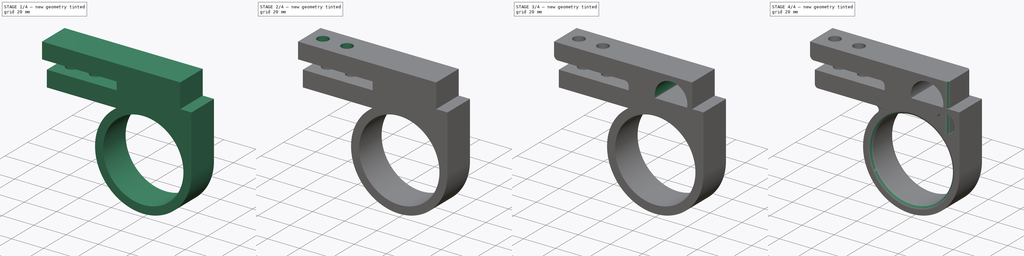
[diagram: build sequence overview — one tinted view per stage of 4, left to right]
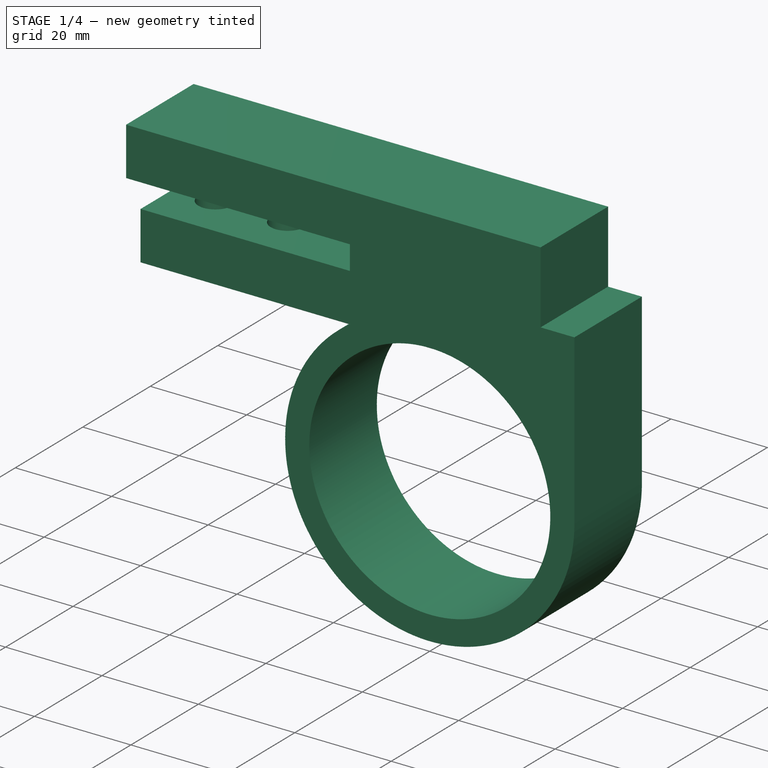
[diagram: stage 1 of 4 — iso view after this stage's code; geometry added in this stage tinted green]
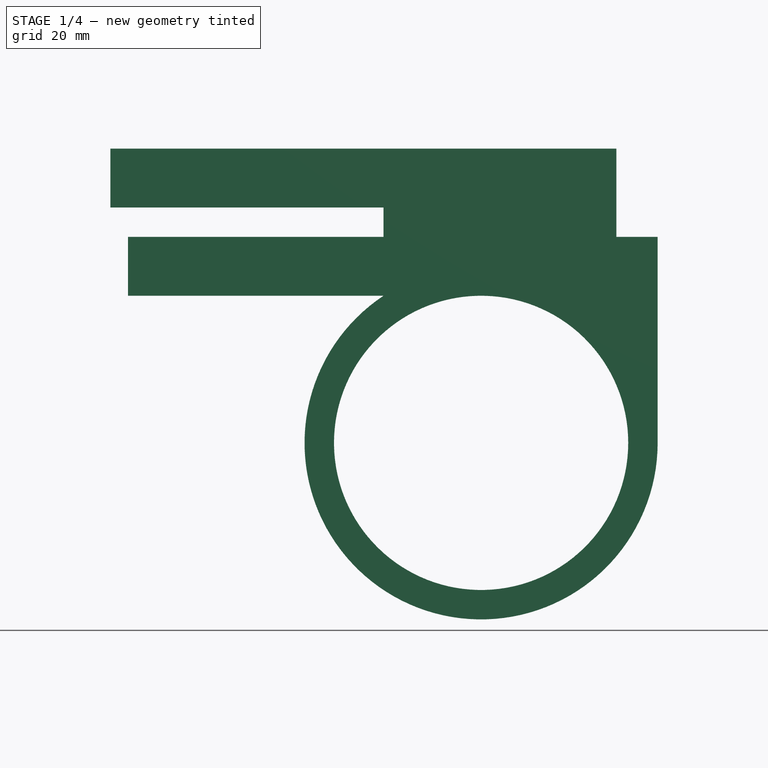
[diagram: stage 1 of 4 — front view after this stage's code; geometry added in this stage tinted green]
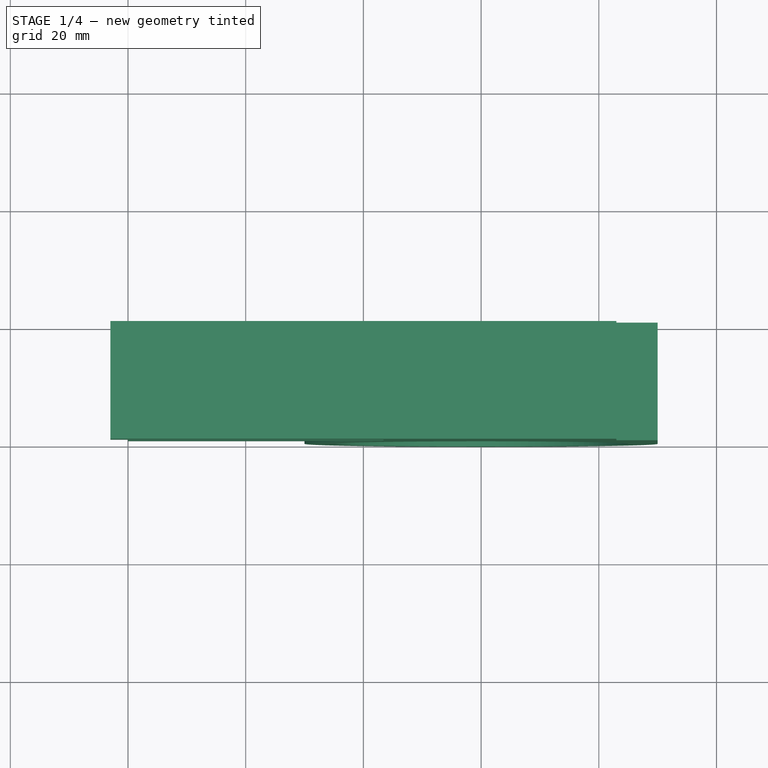
[diagram: stage 1 of 4 — top view after this stage's code; geometry added in this stage tinted green]
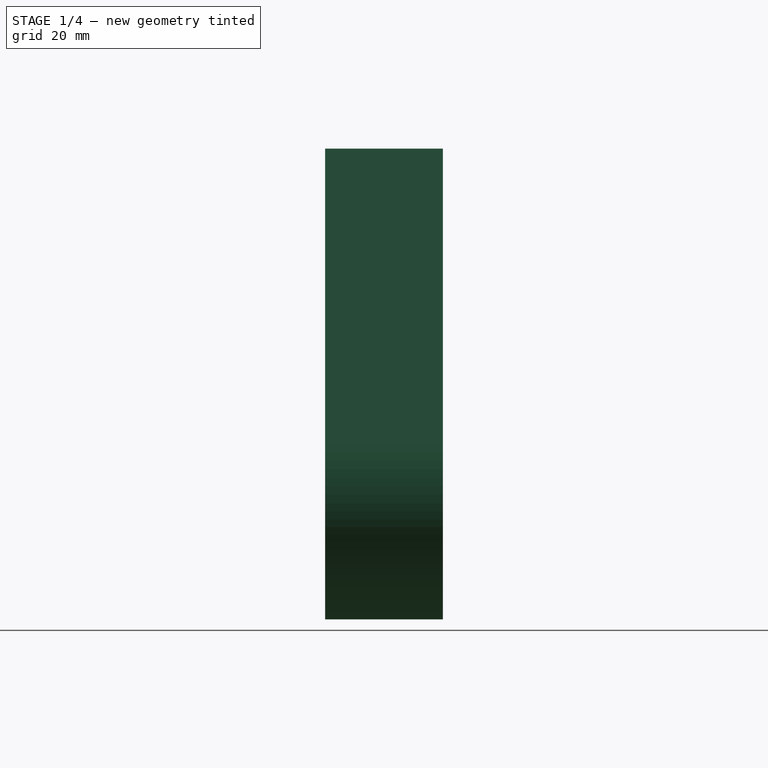
[diagram: stage 1 of 4 — right view after this stage's code; geometry added in this stage tinted green]
FCSTD DOCUMENT  (FreeCAD 0.20R29177 +426 (Git))
Label: treadmill_brackets
License: All rights reserved
LicenseURL: http://en.wikipedia.org/wiki/All_rights_reserved
objects: Sketcher::SketchObject×8, PartDesign::Pocket×6, PartDesign::Fillet×6, PartDesign::Pad×2, PartDesign::Body×2, Spreadsheet::Sheet×1
note: 38 computed .brp shape members not serialized (recipe doc carries the construction recipe); baked Part::Feature solids carry a one-line shape summary decoded from their .brp

FEATURE [Sketcher::SketchObject] Sketch
  FullyConstrained = true
  MapMode = 5
  Placement = pos=(0,0,0) rot=(1,0,0;1.5708rad)
  Support = -> [XZ_Plane]
  expr: Constraints[48] = <<Spreadsheet>>.handle_diam + <<Spreadsheet>>.wall_thickness * 2
  expr: Constraints[4] = <<Spreadsheet>>.handle_diam
  sketch-geometry (33):
    g0: Circle CenterX=0 CenterY=0 CenterZ=0 NormalX=0 NormalY=0 NormalZ=1 AngleXU=0 Radius=30
    g1: Circle CenterX=0 CenterY=0 CenterZ=0 NormalX=0 NormalY=0 NormalZ=1 AngleXU=0 Radius=25
    g2: LineSegment StartX=-60 StartY=35 StartZ=0 EndX=30 EndY=35 EndZ=0
    g3: LineSegment StartX=30 StartY=35 StartZ=0 EndX=30 EndY=25 EndZ=0
    g4: LineSegment StartX=30 StartY=25 StartZ=0 EndX=-60 EndY=25 EndZ=0
    g5: LineSegment StartX=-60 StartY=25 StartZ=0 EndX=-60 EndY=35 EndZ=0
    g6: LineSegment StartX=-60 StartY=25 StartZ=0 EndX=-60 EndY=35 EndZ=0
    g7: LineSegment StartX=-60 StartY=35 StartZ=0 EndX=30 EndY=35 EndZ=0
    g8: LineSegment StartX=30 StartY=35 StartZ=0 EndX=30 EndY=25 EndZ=0
    g9: LineSegment StartX=30 StartY=25 StartZ=0 EndX=-60 EndY=25 EndZ=0
    g10: LineSegment StartX=-40 StartY=35 StartZ=0 EndX=-33 EndY=35 EndZ=0
    g11: LineSegment StartX=-33 StartY=35 StartZ=0 EndX=-33 EndY=-30 EndZ=0
    g12: LineSegment StartX=-33 StartY=-30 StartZ=0 EndX=-40 EndY=-30 EndZ=0
    g13: LineSegment StartX=-40 StartY=-30 StartZ=0 EndX=-40 EndY=35 EndZ=0
    g14: LineSegment StartX=-41.5 StartY=35 StartZ=0 EndX=-31.5 EndY=35 EndZ=0
    g15: LineSegment StartX=-31.5 StartY=35 StartZ=0 EndX=-31.5 EndY=-30 EndZ=0
    g16: LineSegment StartX=-31.5 StartY=-30 StartZ=0 EndX=-41.5 EndY=-30 EndZ=0
    g17: LineSegment StartX=-41.5 StartY=-30 StartZ=0 EndX=-41.5 EndY=35 EndZ=0
    g18: GeomPoint X=-36.5 Y=-30 Z=0
    g19: GeomPoint X=-36.5 Y=35 Z=0
    g20: LineSegment StartX=-60 StartY=25 StartZ=0 EndX=-16.5831 EndY=25 EndZ=0
    g21: LineSegment StartX=30 StartY=25 StartZ=0 EndX=30 EndY=-7.1e-15 EndZ=0
    g22: ArcOfCircle CenterX=0 CenterY=0 CenterZ=0 NormalX=0 NormalY=0 NormalZ=1 AngleXU=0 Radius=30 StartAngle=2.15648 EndAngle=6.28319
    g23: LineSegment StartX=-31.5 StartY=0 StartZ=0 EndX=-30 EndY=0 EndZ=0
    g24: LineSegment StartX=-56.5 StartY=35 StartZ=0 EndX=-46.5 EndY=35 EndZ=0
    g25: LineSegment StartX=-46.5 StartY=35 StartZ=0 EndX=-46.5 EndY=-30 EndZ=0
    g26: LineSegment StartX=-46.5 StartY=-30 StartZ=0 EndX=-56.5 EndY=-30 EndZ=0
    g27: LineSegment StartX=-56.5 StartY=-30 StartZ=0 EndX=-56.5 EndY=35 EndZ=0
    g28: LineSegment StartX=-55 StartY=35 StartZ=0 EndX=-48 EndY=35 EndZ=0
    g29: LineSegment StartX=-48 StartY=35 StartZ=0 EndX=-48 EndY=-30 EndZ=0
    g30: LineSegment StartX=-48 StartY=-30 StartZ=0 EndX=-55 EndY=-30 EndZ=0
    g31: LineSegment StartX=-55 StartY=-30 StartZ=0 EndX=-55 EndY=35 EndZ=0
    g32: GeomPoint X=-51.5 Y=-30 Z=0
  constraints (82):
    c: Coincident(g0,g-1)
    c: Coincident(g1,g0)
    c: PointOnObject(g21,g0)
    c: PointOnObject(g21,g-1)
    c: Diameter(g1) = 50
    c: Coincident(g2,g3)
    c: Coincident(g3,g4)
    c: Coincident(g4,g5)
    c: Coincident(g5,g2)
    c: Horizontal(g2)
    c: Horizontal(g4)
    c: Vertical(g5)
    c: PointOnObject(g21,g3)
    c: Tangent(g4,g1)
    c: DistanceY(g5,g5) = 10
    c: Coincident(g6,g4)
    c: Coincident(g6,g2)
    c: Coincident(g7,g6)
    c: Coincident(g8,g7)
    c: Coincident(g9,g8)
    c: Coincident(g9,g6)
    c: Coincident(g8,g3)
    c: Vertical(g3)
    c: Coincident(g7,g2)
    c: Coincident(g10,g11)
    c: Coincident(g11,g12)
    c: Coincident(g12,g13)
    c: Coincident(g13,g10)
    c: Horizontal(g12)
    c: Vertical(g11)
    c: Vertical(g13)
    c: Tangent(g10,g7)
    c: Coincident(g14,g15)
    c: Coincident(g15,g16)
    c: Coincident(g16,g17)
    c: Coincident(g17,g14)
    c: Horizontal(g16)
    c: Vertical(g15)
    c: Vertical(g17)
    c: DistanceX(g12,g12) = 7
    c: DistanceX(g16,g16) = 10
    c: Symmetric(g12,g11,g18)
    c: Symmetric(g16,g15,g18)
    c: Tangent(g14,g7)
    c: Tangent(g12,g0)
    c: Symmetric(g10,g10,g19)
    c: Coincident(g20,g6)
    c: Coincident(g21,g8)
    c: Diameter(g0) = 60
    c: PointOnObject(g20,g4)
    c: Coincident(g22,g1)
    c: Coincident(g22,g20)
    c: Coincident(g22,g21)
    c: PointOnObject(g23,g15)
    c: PointOnObject(g23,g22)
    c: DistanceX(g23,g23) = 1.5
    c: Tangent(g23,g-1)
    c: Coincident(g24,g25)
    c: Coincident(g25,g26)
    c: Coincident(g26,g27)
    c: Coincident(g27,g24)
    c: Horizontal(g24)
    c: Horizontal(g26)
    c: Vertical(g25)
    c: Vertical(g27)
    c: PointOnObject(g24,g7)
    c: Tangent(g26,g22)
    c: Coincident(g28,g29)
    c: Coincident(g29,g30)
    c: Coincident(g30,g31)
    c: Coincident(g31,g28)
    c: Horizontal(g28)
    c: Horizontal(g30)
    c: Vertical(g29)
    c: Vertical(g31)
    c: PointOnObject(g28,g7)
    c: DistanceX(g26,g26) = 10
    c: DistanceX(g30,g29) = 7
    c: Symmetric(g30,g29,g32)
    c: Symmetric(g26,g25,g32)
    c: DistanceX(g24,g14) = 5
    c: DistanceX(g6,g28) = 5
FEATURE [PartDesign::Pad] Pad
  Direction = (0,-1,-2e-16)
  Length = 20
  Length2 = 10
  Placement = pos=(0,0,0) rot=(1,0,0;1.5708rad)
  Profile = -> Sketch
  ReferenceAxis = -> Sketch [N_Axis]
  Type = 0
  expr: Length = <<Spreadsheet>>.mount_width
FEATURE [Sketcher::SketchObject] Sketch001
  ExternalGeometry = -> [Pad]
  FullyConstrained = false
  MapMode = 5
  Placement = pos=(0,-7.8e-15,35) rot=(0,0,1;3.14159rad)
  Support = -> [Pad]
  sketch-geometry (18):
    g0: GeomPoint X=0 Y=20 Z=0
    g1: GeomPoint X=51.5 Y=10 Z=0
    g2: Circle CenterX=51.5 CenterY=10 CenterZ=0 NormalX=0 NormalY=0 NormalZ=1 AngleXU=0 Radius=3.5
    g3: LineSegment StartX=51.5 StartY=20 StartZ=0 EndX=51.5 EndY=0 EndZ=0
    g4: LineSegment StartX=48 StartY=20 StartZ=0 EndX=55 EndY=20 EndZ=0
    g5: LineSegment StartX=55 StartY=20 StartZ=0 EndX=55 EndY=0 EndZ=0
    g6: LineSegment StartX=55 StartY=0 StartZ=0 EndX=48 EndY=0 EndZ=0
    g7: LineSegment StartX=48 StartY=0 StartZ=0 EndX=48 EndY=20 EndZ=0
    g8: LineSegment StartX=46.5 StartY=20 StartZ=0 EndX=56.5 EndY=20 EndZ=0
    g9: LineSegment StartX=56.5 StartY=20 StartZ=0 EndX=56.5 EndY=0 EndZ=0
    g10: LineSegment StartX=56.5 StartY=0 StartZ=0 EndX=46.5 EndY=0 EndZ=0
    g11: LineSegment StartX=46.5 StartY=0 StartZ=0 EndX=46.5 EndY=20 EndZ=0
    g12: LineSegment StartX=31.5 StartY=20 StartZ=0 EndX=41.5 EndY=20 EndZ=0
    g13: LineSegment StartX=41.5 StartY=20 StartZ=0 EndX=41.5 EndY=0 EndZ=0
    g14: LineSegment StartX=41.5 StartY=0 StartZ=0 EndX=31.5 EndY=0 EndZ=0
    g15: LineSegment StartX=31.5 StartY=0 StartZ=0 EndX=31.5 EndY=20 EndZ=0
    g16: Circle CenterX=36.5 CenterY=10 CenterZ=0 NormalX=0 NormalY=0 NormalZ=1 AngleXU=0 Radius=3.5
    g17: LineSegment StartX=36.5 StartY=20 StartZ=0 EndX=36.5 EndY=0 EndZ=0
  constraints (46):
    c: Coincident(g2,g1)
    c: Diameter(g2) = 7
    c: PointOnObject(g3,g-4)
    c: PointOnObject(g3,g-1)
    c: Vertical(g3)
    c: Symmetric(g3,g3,g2)
    c: Coincident(g4,g5)
    c: Coincident(g5,g6)
    c: Coincident(g6,g7)
    c: Coincident(g7,g4)
    c: Horizontal(g4)
    c: Horizontal(g6)
    c: Vertical(g5)
    c: Vertical(g7)
    c: PointOnObject(g5,g-1)
    c: Symmetric(g4,g4,g3)
    c: DistanceX(g4,g-4) = 5
    c: Coincident(g8,g9)
    c: Coincident(g9,g10)
    c: Coincident(g10,g11)
    c: Coincident(g11,g8)
    c: Horizontal(g8)
    c: Horizontal(g10)
    c: Vertical(g9)
    c: Vertical(g11)
    c: PointOnObject(g8,g-4)
    c: Symmetric(g9,g10,g3)
    c: DistanceX(g8,g8) = 10
    c: Coincident(g12,g13)
    c: Coincident(g13,g14)
    c: Coincident(g14,g15)
    c: Coincident(g15,g12)
    c: Horizontal(g12)
    c: Horizontal(g14)
    c: Vertical(g13)
    c: Vertical(g15)
    c: PointOnObject(g12,g-4)
    c: PointOnObject(g13,g-1)
    c: DistanceX(g14,g14) = 10
    c: DistanceX(g12,g8) = 5
    c: PointOnObject(g17,g14)
    c: Vertical(g17)
    c: Symmetric(g12,g12,g17)
    c: Symmetric(g17,g17,g16)
    c: DistanceX(g4,g4) = 7
    c: Equal(g16,g2)
FEATURE [Spreadsheet::Sheet] Spreadsheet
  cells = A1=quarter 20 diam; B1(mount_hole_diam)=7; A2=handle diam; B2(handle_diam)=50; A3=wall thickness; B3(wall_thickness)=5; A4=nut width; B4(nut_width)=11.5; A5=mount width; B5(mount_width)=20
FEATURE [Sketcher::SketchObject] Sketch003
  FullyConstrained = true
  MapMode = 5
  Placement = pos=(0,0,0) rot=(1,0,0;1.5708rad)
  Support = -> [XZ_Plane001]
  expr: Constraints[10] = <<Spreadsheet>>.handle_diam
  expr: Constraints[11] = <<Spreadsheet>>.handle_diam + <<Spreadsheet>>.wall_thickness * 2
  expr: Constraints[55] = <<Spreadsheet>>.mount_hole_diam
  expr: Constraints[66] = <<Spreadsheet>>.nut_width
  sketch-geometry (36):
    g0: Circle CenterX=0 CenterY=0 CenterZ=0 NormalX=0 NormalY=0 NormalZ=1 AngleXU=0 Radius=30
    g1: Circle CenterX=0 CenterY=0 CenterZ=0 NormalX=0 NormalY=0 NormalZ=1 AngleXU=0 Radius=25
    g2: LineSegment StartX=-63 StartY=50 StartZ=0 EndX=30 EndY=50 EndZ=0
    g3: LineSegment StartX=30 StartY=50 StartZ=0 EndX=30 EndY=25 EndZ=0
    g4: LineSegment StartX=30 StartY=25 StartZ=0 EndX=-63 EndY=25 EndZ=0
    g5: LineSegment StartX=-63 StartY=25 StartZ=0 EndX=-63 EndY=50 EndZ=0
    g6: LineSegment StartX=0 StartY=0 StartZ=0 EndX=22.9813 EndY=19.2836 EndZ=0
    g7: LineSegment StartX=0 StartY=0 StartZ=0 EndX=-25.9808 EndY=-15 EndZ=0
    g8: ArcOfCircle CenterX=0 CenterY=0 CenterZ=0 NormalX=0 NormalY=0 NormalZ=1 AngleXU=0 Radius=25 StartAngle=0.698132 EndAngle=3.66519
    g9: ArcOfCircle CenterX=0 CenterY=0 CenterZ=0 NormalX=0 NormalY=0 NormalZ=1 AngleXU=0 Radius=30 StartAngle=2.15648 EndAngle=3.66519
    g10: LineSegment StartX=19.1511 StartY=16.0697 StartZ=0 EndX=22.9813 EndY=19.2836 EndZ=0
    g11: LineSegment StartX=-21.6506 StartY=-12.5 StartZ=0 EndX=-25.9808 EndY=-15 EndZ=0
    g12: LineSegment StartX=22.9813 StartY=19.2836 StartZ=0 EndX=22.9813 EndY=50 EndZ=0
    g13: LineSegment StartX=22.9813 StartY=50 StartZ=0 EndX=-63 EndY=50 EndZ=0
    g14: LineSegment StartX=-63 StartY=50 StartZ=0 EndX=-63 EndY=40 EndZ=0
    g15: LineSegment StartX=-63 StartY=40 StartZ=0 EndX=-16.5831 EndY=40 EndZ=0
    g16: LineSegment StartX=-16.5831 StartY=40 StartZ=0 EndX=-16.5831 EndY=25 EndZ=0
    g17: LineSegment StartX=-40.75 StartY=50 StartZ=0 EndX=-33.75 EndY=50 EndZ=0
    g18: LineSegment StartX=-33.75 StartY=50 StartZ=0 EndX=-33.75 EndY=0 EndZ=0
    g19: LineSegment StartX=-33.75 StartY=0 StartZ=0 EndX=-40.75 EndY=0 EndZ=0
    g20: LineSegment StartX=-40.75 StartY=0 StartZ=0 EndX=-40.75 EndY=50 EndZ=0
    g21: LineSegment StartX=-43 StartY=50 StartZ=0 EndX=-31.5 EndY=50 EndZ=0
    g22: LineSegment StartX=-31.5 StartY=50 StartZ=0 EndX=-31.5 EndY=0 EndZ=0
    g23: LineSegment StartX=-31.5 StartY=0 StartZ=0 EndX=-43 EndY=0 EndZ=0
    g24: LineSegment StartX=-43 StartY=0 StartZ=0 EndX=-43 EndY=50 EndZ=0
    g25: GeomPoint X=-37.25 Y=0 Z=0
    g26: LineSegment StartX=-31.5 StartY=0 StartZ=0 EndX=-30 EndY=0 EndZ=0
    g27: LineSegment StartX=-56.5 StartY=50 StartZ=0 EndX=-48 EndY=50 EndZ=0
    g28: LineSegment StartX=-48 StartY=50 StartZ=0 EndX=-48 EndY=0 EndZ=0
    g29: LineSegment StartX=-48 StartY=0 StartZ=0 EndX=-56.5 EndY=0 EndZ=0
    g30: LineSegment StartX=-56.5 StartY=0 StartZ=0 EndX=-56.5 EndY=50 EndZ=0
    g31: LineSegment StartX=-58 StartY=50 StartZ=0 EndX=-49.5 EndY=50 EndZ=0
    g32: LineSegment StartX=-49.5 StartY=50 StartZ=0 EndX=-49.5 EndY=0 EndZ=0
    g33: LineSegment StartX=-49.5 StartY=0 StartZ=0 EndX=-58 EndY=0 EndZ=0
    g34: LineSegment StartX=-58 StartY=0 StartZ=0 EndX=-58 EndY=50 EndZ=0
    g35: GeomPoint X=-53 Y=0 Z=0
  constraints (98):
    c: Coincident(g0,g-1)
    c: Coincident(g1,g0)
    c: Coincident(g2,g3)
    c: Coincident(g3,g4)
    c: Coincident(g4,g5)
    c: Coincident(g5,g2)
    c: Horizontal(g2)
    c: Horizontal(g4)
    c: Vertical(g3)
    c: Vertical(g5)
    c: Diameter(g1) = 50
    c: Diameter(g0) = 60
    c: Tangent(g4,g1)
    c: DistanceY(g3,g3) = 25
    c: Coincident(g6,g0)
    c: PointOnObject(g6,g0)
    c: Coincident(g7,g0)
    c: PointOnObject(g7,g0)
    c: Angle(g-1,g6) = 0.698132
    c: Angle(g7,g-1) = 2.61799
    c: Coincident(g8,g0)
    c: Coincident(g9,g8)
    c: Coincident(g9,g7)
    c: PointOnObject(g9,g4)
    c: PointOnObject(g8,g1)
    c: PointOnObject(g8,g6)
    c: PointOnObject(g10,g6)
    c: PointOnObject(g10,g0)
    c: PointOnObject(g8,g7)
    c: Coincident(g10,g8)
    c: Coincident(g11,g8)
    c: Coincident(g9,g11)
    c: Tangent(g3,g0)
    c: Coincident(g12,g10)
    c: PointOnObject(g12,g2)
    c: Vertical(g12)
    c: Coincident(g13,g12)
    c: Horizontal(g13)
    c: PointOnObject(g13,g5)
    c: Coincident(g14,g13)
    c: Coincident(g15,g14)
    c: Horizontal(g15)
    c: Coincident(g16,g15)
    c: Coincident(g16,g9)
    c: Vertical(g16)
    c: Vertical(g14)
    c: DistanceY(g14,g14) = 10
    c: Coincident(g17,g18)
    c: Coincident(g18,g19)
    c: Coincident(g19,g20)
    c: Coincident(g20,g17)
    c: Horizontal(g17)
    c: Vertical(g18)
    c: Vertical(g20)
    c: PointOnObject(g17,g13)
    c: DistanceX(g19,g19) = 7
    c: Coincident(g21,g22)
    c: Coincident(g22,g23)
    c: Coincident(g23,g24)
    c: Coincident(g24,g21)
    c: Horizontal(g21)
    c: Vertical(g22)
    c: Vertical(g24)
    c: PointOnObject(g21,g13)
    c: Tangent(g19,g23)
    c: Tangent(g19,g-1)
    c: DistanceX(g21,g21) = 11.5
    c: Symmetric(g23,g22,g25)
    c: Coincident(g26,g22)
    c: PointOnObject(g26,g9)
    c: Horizontal(g26)
    c: DistanceX(g26,g26) = 1.5
    c: Coincident(g27,g28)
    c: Coincident(g28,g29)
    c: Coincident(g29,g30)
    c: Coincident(g30,g27)
    c: Horizontal(g27)
    c: Horizontal(g29)
    c: Vertical(g28)
    c: Vertical(g30)
    c: PointOnObject(g27,g13)
    c: PointOnObject(g28,g-1)
    c: Coincident(g31,g32)
    c: Coincident(g32,g33)
    c: Coincident(g33,g34)
    c: Coincident(g34,g31)
    c: Horizontal(g31)
    c: Vertical(g32)
    c: Vertical(g34)
    c: PointOnObject(g31,g13)
    c: DistanceX(g13,g31) = 5
    c: DistanceX(g33,g28) = 10
    c: DistanceX(g29,g32) = 7
    c: Symmetric(g33,g28,g35)
    c: Symmetric(g29,g32,g35)
    c: DistanceX(g27,g21) = 5
    c: PointOnObject(g32,g29)
    c: Symmetric(g19,g18,g25)
FEATURE [PartDesign::Pad] Pad001
  Direction = (0,-1,-2e-16)
  Length = 20
  Length2 = 10
  Placement = pos=(0,0,0) rot=(1,0,0;1.5708rad)
  Profile = -> Sketch003
  ReferenceAxis = -> Sketch003 [N_Axis]
  Type = 0
  expr: Length = <<Spreadsheet>>.mount_width
FEATURE [PartDesign::Body] Body001
  Group = -> [Sketch003,Pad001,Sketch004,Pocket002,Sketch005,Pocket003,Fillet,Fillet001,Fillet002,Sketch009,Pocket007,Fillet005]
  Origin = -> Origin001
  Tip = -> Fillet005
FEATURE [Sketcher::SketchObject] Sketch002
  FullyConstrained = false
  MapMode = 5
  Placement = pos=(4.1e-15,-5.6e-15,25) rot=(1,0,0;3.14159rad)
  sketch-geometry (14):
    g0: LineSegment StartX=-45.75 StartY=13.3198 StartZ=0 EndX=-51.5 EndY=16.6395 EndZ=0
    g1: LineSegment StartX=-51.5 StartY=16.6395 StartZ=0 EndX=-57.25 EndY=13.3198 EndZ=0
    g2: LineSegment StartX=-57.25 StartY=13.3198 StartZ=0 EndX=-57.25 EndY=6.68024 EndZ=0
    g3: LineSegment StartX=-57.25 StartY=6.68024 StartZ=0 EndX=-51.5 EndY=3.36047 EndZ=0
    g4: LineSegment StartX=-51.5 StartY=3.36047 StartZ=0 EndX=-45.75 EndY=6.68024 EndZ=0
    g5: LineSegment StartX=-45.75 StartY=6.68024 StartZ=0 EndX=-45.75 EndY=13.3198 EndZ=0
    g6: Circle CenterX=-51.5 CenterY=10 CenterZ=0 NormalX=0 NormalY=0 NormalZ=1 AngleXU=0 Radius=6.63953
    g7: LineSegment StartX=-36.5 StartY=16.6395 StartZ=0 EndX=-42.25 EndY=13.3198 EndZ=0
    g8: LineSegment StartX=-42.25 StartY=13.3198 StartZ=0 EndX=-42.25 EndY=6.68024 EndZ=0
    g9: LineSegment StartX=-42.25 StartY=6.68024 StartZ=0 EndX=-36.5 EndY=3.36047 EndZ=0
    g10: LineSegment StartX=-36.5 StartY=3.36047 StartZ=0 EndX=-30.75 EndY=6.68024 EndZ=0
    g11: LineSegment StartX=-30.75 StartY=6.68024 StartZ=0 EndX=-30.75 EndY=13.3198 EndZ=0
    g12: LineSegment StartX=-30.75 StartY=13.3198 StartZ=0 EndX=-36.5 EndY=16.6395 EndZ=0
    g13: Circle CenterX=-36.5 CenterY=10 CenterZ=0 NormalX=0 NormalY=0 NormalZ=1 AngleXU=0 Radius=6.63953
  constraints (30):
    c: Coincident(g0,g1)
    c: Coincident(g1,g2)
    c: Coincident(g2,g3)
    c: Coincident(g3,g4)
    c: Coincident(g4,g5)
    c: Coincident(g5,g0)
    c: Equal(g0, g1-g5) x5
    c: PointOnObject(g0,g6)
    c: PointOnObject(g1,g6)
    c: PointOnObject(g2,g6)
    c: PointOnObject(g3,g6)
    c: PointOnObject(g4,g6)
    c: PointOnObject(g5,g6)
    c: Distance(g2,g0) = 11.5
    c: Vertical(g2)
    c: Coincident(g7,g8)
    c: Coincident(g8,g9)
    c: Coincident(g9,g10)
    c: Coincident(g10,g11)
    c: Coincident(g11,g12)
    c: Coincident(g12,g7)
    c: Equal(g7, g8-g12) x5
    c: PointOnObject(g7,g13)
    c: PointOnObject(g8,g13)
    c: PointOnObject(g9,g13)
    c: PointOnObject(g10,g13)
    c: PointOnObject(g11,g13)
    c: PointOnObject(g12,g13)
    c: Equal(g7,g1)
    c: Vertical(g8)
FEATURE [PartDesign::Pocket] Pocket
  BaseFeature = -> Pad
  Direction = (0,2e-16,-1)
  Length = 5
  Length2 = 5
  Placement = pos=(0,0,0) rot=(1,0,0;1.5708rad)
  Profile = -> Sketch001
  ReferenceAxis = -> Sketch001 [N_Axis]
  Type = 2
FEATURE [PartDesign::Pocket] Pocket001
  BaseFeature = -> Pocket
  Direction = (2e-16,-2e-16,1)
  Length = 6
  Length2 = 5
  Placement = pos=(0,0,0) rot=(1,0,0;1.5708rad)
  Profile = -> Sketch002
  ReferenceAxis = -> Sketch002 [N_Axis]
  Type = 0
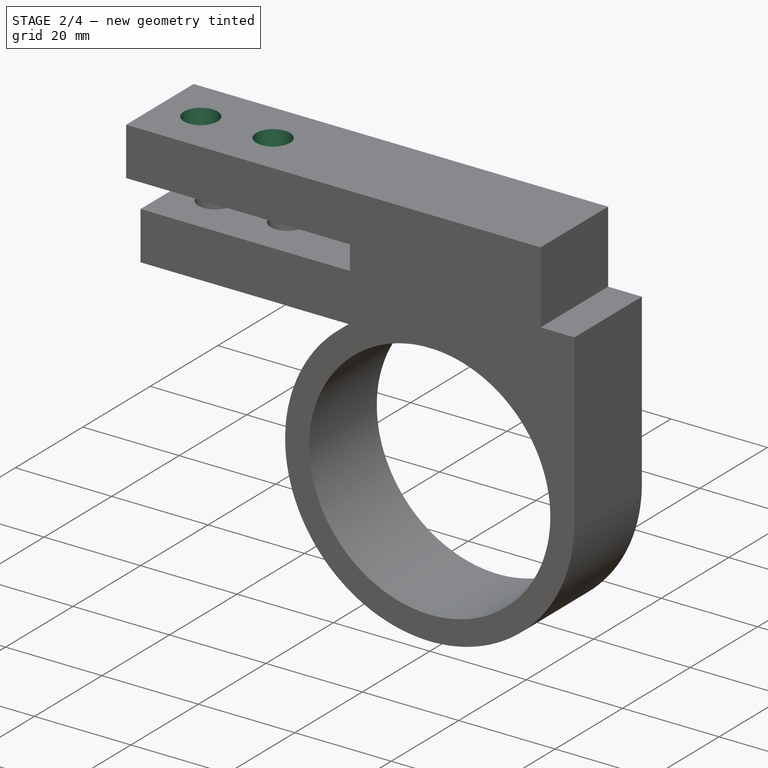
[diagram: stage 2 of 4 — iso view after this stage's code; geometry added in this stage tinted green]
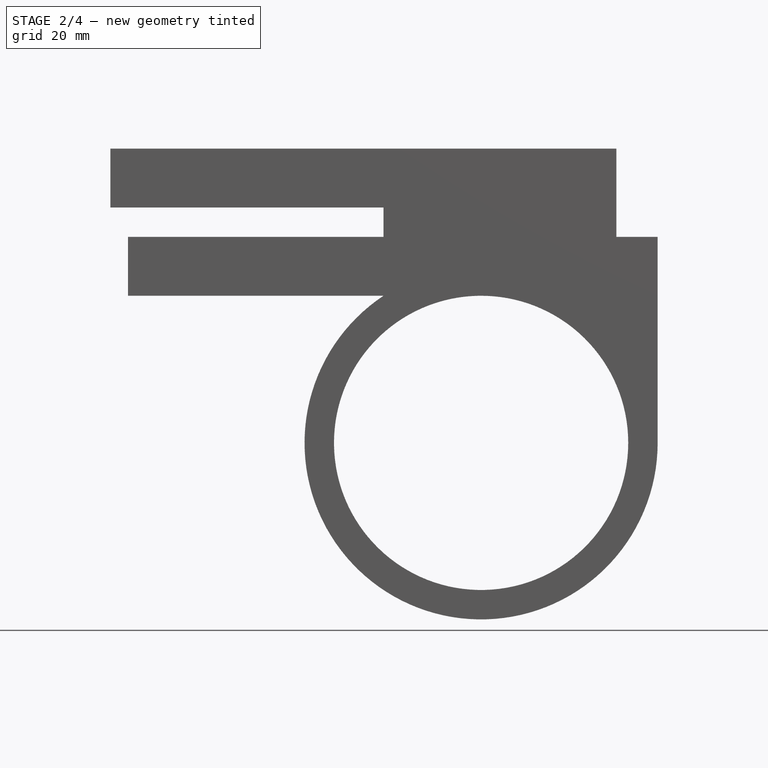
[diagram: stage 2 of 4 — front view after this stage's code; geometry added in this stage tinted green]
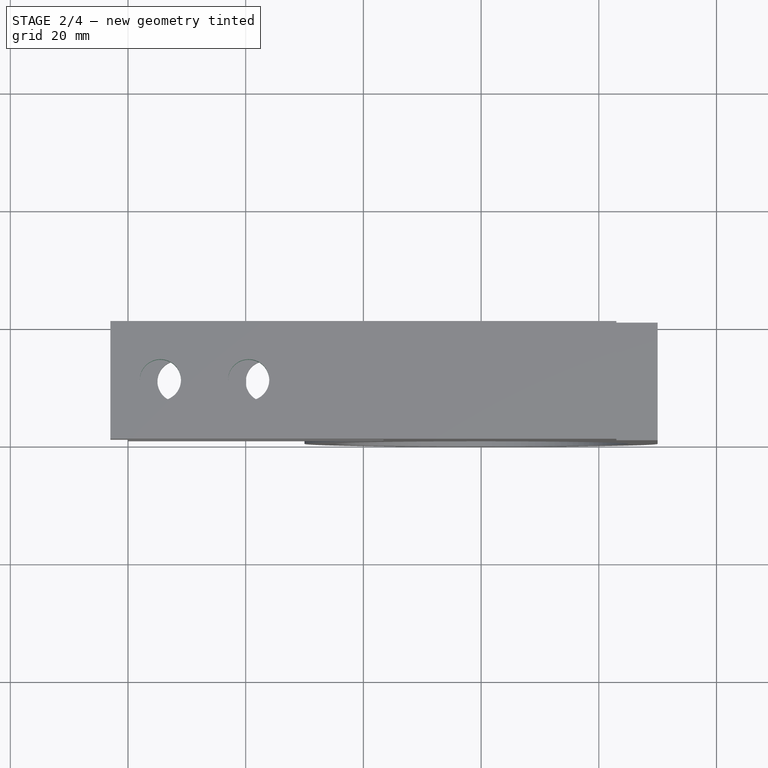
[diagram: stage 2 of 4 — top view after this stage's code; geometry added in this stage tinted green]
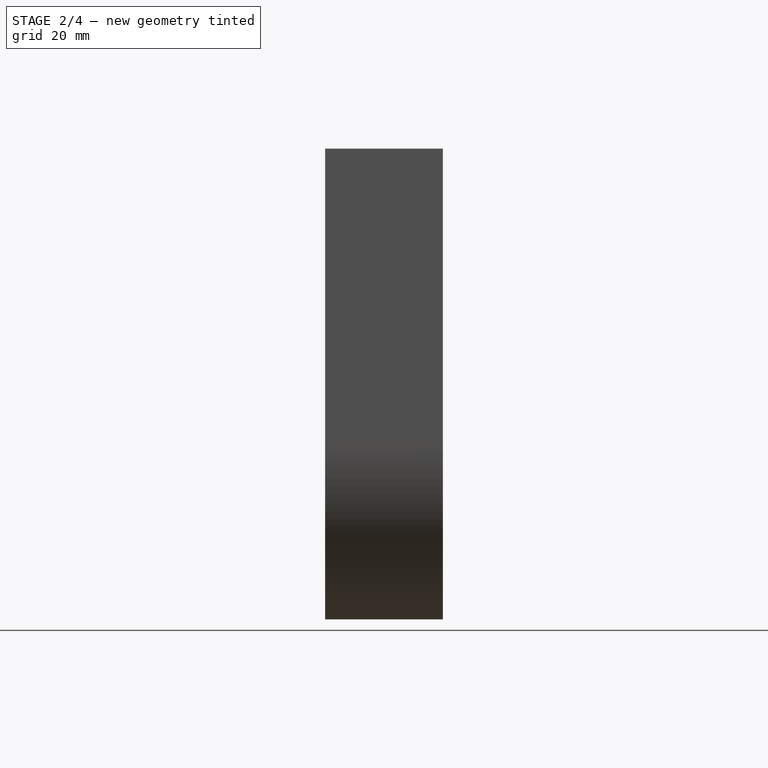
[diagram: stage 2 of 4 — right view after this stage's code; geometry added in this stage tinted green]
FEATURE [Sketcher::SketchObject] Sketch004
  ExternalGeometry = -> [Pad001]
  FullyConstrained = true
  MapMode = 5
  Placement = pos=(0,1.11e-14,50) rot=(0,0,1;3.14159rad)
  Support = -> [Pad001]
  sketch-geometry (7):
    g0: Circle CenterX=54.5 CenterY=10 CenterZ=0 NormalX=0 NormalY=0 NormalZ=1 AngleXU=0 Radius=3.5
    g1: LineSegment StartX=54.5 StartY=20 StartZ=0 EndX=54.5 EndY=0 EndZ=0
    g2: LineSegment StartX=51 StartY=20 StartZ=0 EndX=58 EndY=20 EndZ=0
    g3: LineSegment StartX=49.5 StartY=20 StartZ=0 EndX=59.5 EndY=20 EndZ=0
    g4: LineSegment StartX=34.5 StartY=20 StartZ=0 EndX=44.5 EndY=20 EndZ=0
    g5: LineSegment StartX=39.5 StartY=20 StartZ=0 EndX=39.5 EndY=0 EndZ=0
    g6: Circle CenterX=39.5 CenterY=10 CenterZ=0 NormalX=0 NormalY=0 NormalZ=1 AngleXU=0 Radius=3.5
  constraints (20):
    c: Diameter(g0) = 7
    c: Vertical(g1)
    c: Symmetric(g1,g1,g0)
    c: Symmetric(g2,g2,g1)
    c: DistanceX(g2,g2) = 7
    c: Tangent(g2,g-6)
    c: DistanceX(g2,g-6) = 5
    c: PointOnObject(g1,g-1)
    c: PointOnObject(g3,g-6)
    c: Symmetric(g3,g3,g1)
    c: PointOnObject(g4,g-6)
    c: PointOnObject(g4,g-6)
    c: DistanceX(g4,g4) = 10
    c: DistanceX(g4,g3) = 5
    c: PointOnObject(g5,g-1)
    c: Vertical(g5)
    c: Symmetric(g4,g4,g5)
    c: Equal(g6,g0)
    c: Symmetric(g5,g5,g6)
    c: DistanceX(g3,g3) = 10
FEATURE [PartDesign::Pocket] Pocket002
  BaseFeature = -> Pad001
  Direction = (0,2e-16,-1)
  Length = 5
  Length2 = 5
  Placement = pos=(0,0,0) rot=(1,0,0;1.5708rad)
  Profile = -> Sketch004
  ReferenceAxis = -> Sketch004 [N_Axis]
  Type = 2
FEATURE [Sketcher::SketchObject] Sketch005
  ExternalGeometry = -> [Pocket002]
  FullyConstrained = true
  MapMode = 5
  Placement = pos=(0,8.9e-15,40) rot=(1,0,0;3.14159rad)
  Support = -> [Pocket002]
  sketch-geometry (14):
    g0: LineSegment StartX=-60.25 StartY=6.68024 StartZ=0 EndX=-54.5 EndY=3.36047 EndZ=0
    g1: LineSegment StartX=-54.5 StartY=3.36047 StartZ=0 EndX=-48.75 EndY=6.68024 EndZ=0
    g2: LineSegment StartX=-48.75 StartY=6.68024 StartZ=0 EndX=-48.75 EndY=13.3198 EndZ=0
    g3: LineSegment StartX=-48.75 StartY=13.3198 StartZ=0 EndX=-54.5 EndY=16.6395 EndZ=0
    g4: LineSegment StartX=-54.5 StartY=16.6395 StartZ=0 EndX=-60.25 EndY=13.3198 EndZ=0
    g5: LineSegment StartX=-60.25 StartY=13.3198 StartZ=0 EndX=-60.25 EndY=6.68024 EndZ=0
    g6: Circle CenterX=-54.5 CenterY=10 CenterZ=0 NormalX=0 NormalY=0 NormalZ=1 AngleXU=0 Radius=6.63953
    g7: LineSegment StartX=-39.5 StartY=16.6395 StartZ=0 EndX=-45.25 EndY=13.3198 EndZ=0
    g8: LineSegment StartX=-45.25 StartY=13.3198 StartZ=0 EndX=-45.25 EndY=6.68024 EndZ=0
    g9: LineSegment StartX=-45.25 StartY=6.68024 StartZ=0 EndX=-39.5 EndY=3.36047 EndZ=0
    g10: LineSegment StartX=-39.5 StartY=3.36047 StartZ=0 EndX=-33.75 EndY=6.68024 EndZ=0
    g11: LineSegment StartX=-33.75 StartY=6.68024 StartZ=0 EndX=-33.75 EndY=13.3198 EndZ=0
    g12: LineSegment StartX=-33.75 StartY=13.3198 StartZ=0 EndX=-39.5 EndY=16.6395 EndZ=0
    g13: Circle CenterX=-39.5 CenterY=10 CenterZ=0 NormalX=0 NormalY=0 NormalZ=1 AngleXU=0 Radius=6.63953
  constraints (32):
    c: Coincident(g0,g1)
    c: Coincident(g1,g2)
    c: Coincident(g2,g3)
    c: Coincident(g3,g4)
    c: Coincident(g4,g5)
    c: Coincident(g5,g0)
    c: Equal(g0, g1-g5) x5
    c: PointOnObject(g0,g6)
    c: PointOnObject(g1,g6)
    c: PointOnObject(g2,g6)
    c: PointOnObject(g3,g6)
    c: PointOnObject(g4,g6)
    c: PointOnObject(g5,g6)
    c: Distance(g0,g3) = 11.5
    c: Vertical(g5)
    c: Coincident(g6,g-7)
    c: Coincident(g7,g8)
    c: Coincident(g8,g9)
    c: Coincident(g9,g10)
    c: Coincident(g10,g11)
    c: Coincident(g11,g12)
    c: Coincident(g12,g7)
    c: Equal(g7, g8-g12) x5
    c: PointOnObject(g7,g13)
    c: PointOnObject(g8,g13)
    c: PointOnObject(g9,g13)
    c: PointOnObject(g10,g13)
    c: PointOnObject(g11,g13)
    c: PointOnObject(g12,g13)
    c: Coincident(g13,g-4)
    c: Vertical(g8)
    c: Equal(g7,g3)
FEATURE [PartDesign::Pocket] Pocket003
  BaseFeature = -> Pocket002
  Direction = (0,-2e-16,1)
  Length = 6
  Length2 = 5
  Placement = pos=(0,0,0) rot=(1,0,0;1.5708rad)
  Profile = -> Sketch005
  ReferenceAxis = -> Sketch005 [N_Axis]
  Type = 0
FEATURE [PartDesign::Fillet] Fillet
  Base = -> Pocket003 [Face6,Edge1]
  BaseFeature = -> Pocket003
  Placement = pos=(0,0,0) rot=(1,0,0;1.5708rad)
  Radius = 2.499
  SupportTransform = false
  UseAllEdges = false
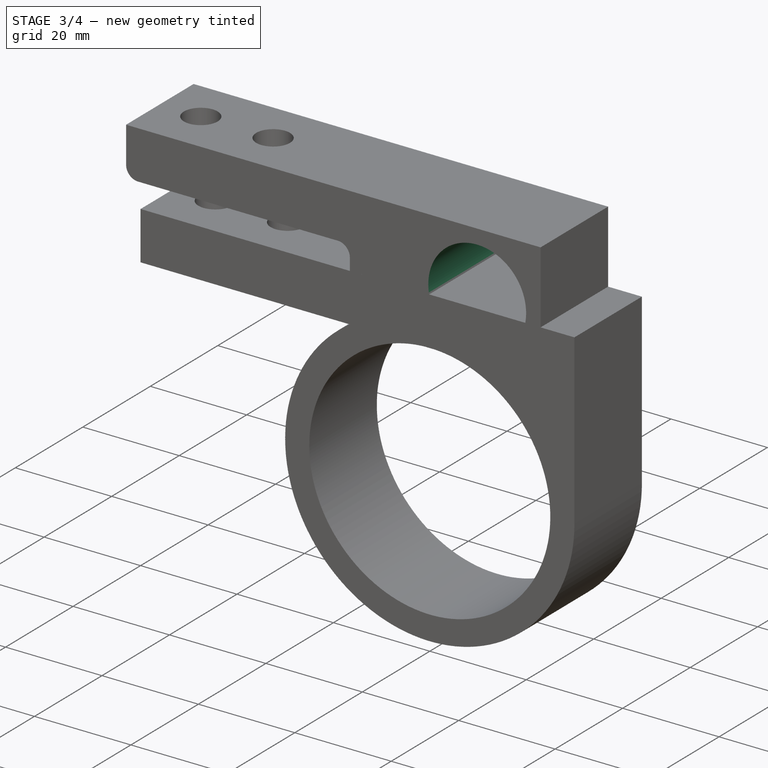
[diagram: stage 3 of 4 — iso view after this stage's code; geometry added in this stage tinted green]
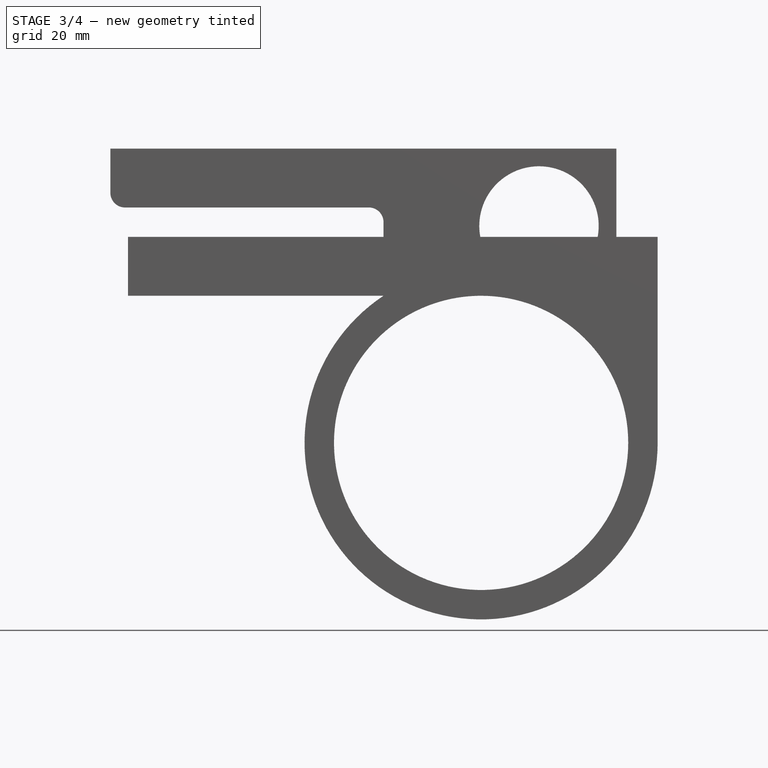
[diagram: stage 3 of 4 — front view after this stage's code; geometry added in this stage tinted green]
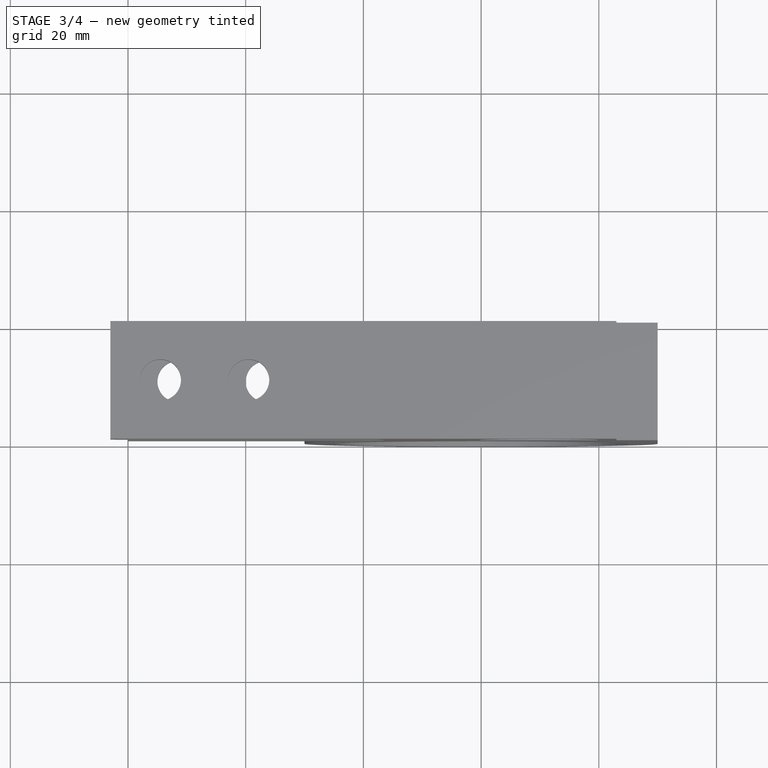
[diagram: stage 3 of 4 — top view after this stage's code; geometry added in this stage tinted green]
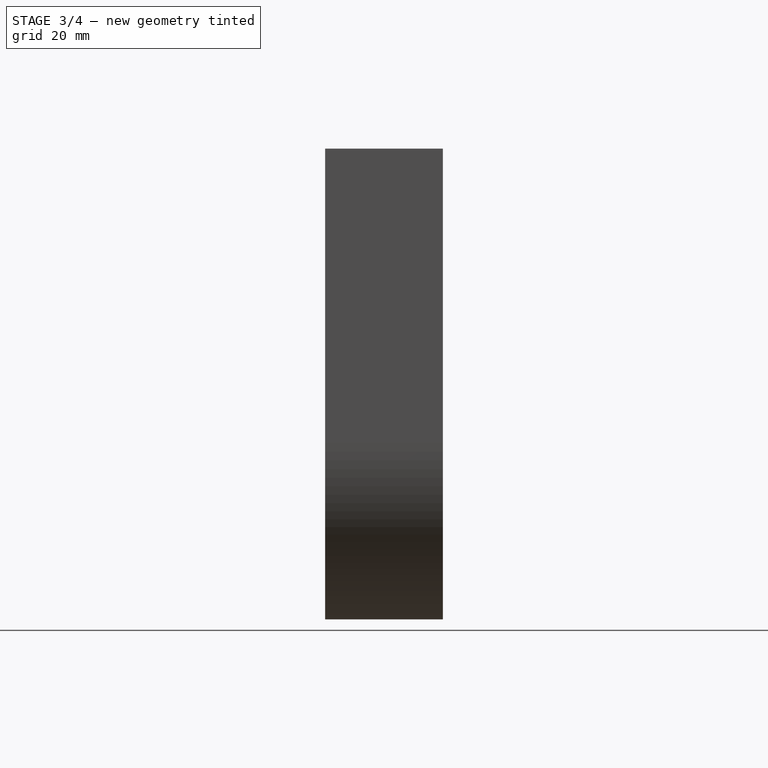
[diagram: stage 3 of 4 — right view after this stage's code; geometry added in this stage tinted green]
FEATURE [PartDesign::Fillet] Fillet001
  Base = -> Fillet [Edge3]
  BaseFeature = -> Fillet
  Placement = pos=(0,0,0) rot=(1,0,0;1.5708rad)
  Radius = 2.4
  SupportTransform = false
  UseAllEdges = false
FEATURE [PartDesign::Fillet] Fillet002
  Base = -> Fillet001 [Edge39,Edge43]
  BaseFeature = -> Fillet001
  Placement = pos=(0,0,0) rot=(1,0,0;1.5708rad)
  Radius = 2.5
  SupportTransform = false
  UseAllEdges = false
FEATURE [Sketcher::SketchObject] Sketch009
  ExternalGeometry = -> [Fillet002]
  FullyConstrained = true
  MapMode = 5
  Placement = pos=(0,-20,0) rot=(1,0,0;1.5708rad)
  Support = -> [Fillet002]
  sketch-geometry (5):
    g0: Circle CenterX=9.83631 CenterY=36.855 CenterZ=0 NormalX=0 NormalY=0 NormalZ=1 AngleXU=0 Radius=10.145
    g1: LineSegment StartX=9.83631 StartY=36.855 StartZ=0 EndX=6.44666 EndY=24.1545 EndZ=0
    g2: LineSegment StartX=9.83631 StartY=36.855 StartZ=0 EndX=22.9813 EndY=36.855 EndZ=0
    g3: LineSegment StartX=9.83631 StartY=36.855 StartZ=0 EndX=9.83631 EndY=50 EndZ=0
    g4: GeomPoint X=19.9813 Y=36.855 Z=0
  constraints (14):
    c: Coincident(g1,g0)
    c: Coincident(g2,g0)
    c: Horizontal(g2)
    c: Coincident(g3,g0)
    c: PointOnObject(g3,g-3)
    c: Vertical(g3)
    c: Equal(g1,g2)
    c: Equal(g2,g3)
    c: PointOnObject(g4,g0)
    c: PointOnObject(g4,g2)
    c: DistanceX(g4,g2) = 3
    c: Perpendicular(g-4,g1)
    c: PointOnObject(g1,g-4)
    c: PointOnObject(g2,g-5)
FEATURE [PartDesign::Pocket] Pocket007
  BaseFeature = -> Fillet002
  Direction = (0,1,2e-16)
  Length = 5
  Length2 = 5
  Placement = pos=(0,0,0) rot=(1,0,0;1.5708rad)
  Profile = -> Sketch009
  ReferenceAxis = -> Sketch009 [N_Axis]
  Type = 2
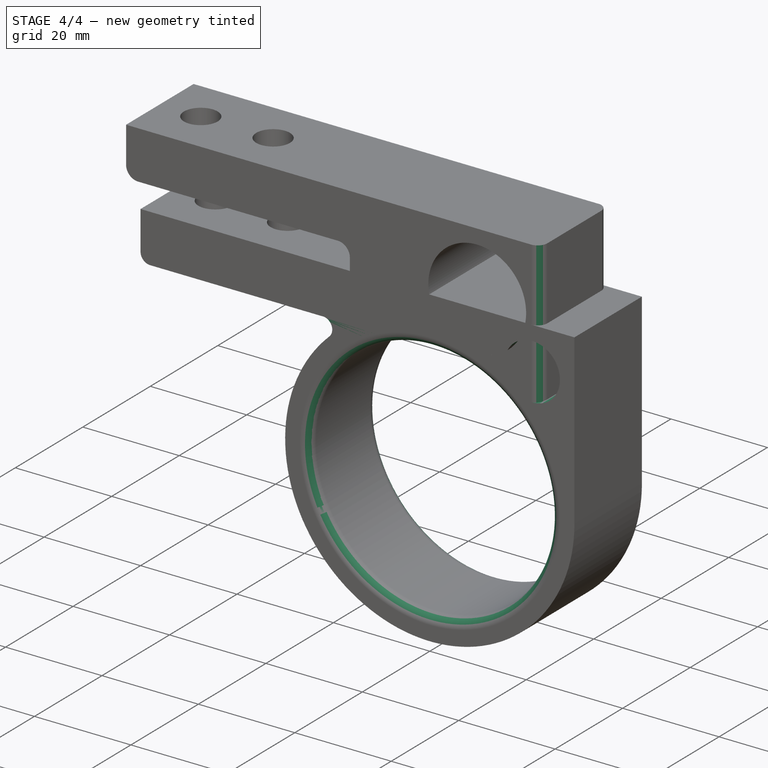
[diagram: stage 4 of 4 — iso view after this stage's code; geometry added in this stage tinted green]
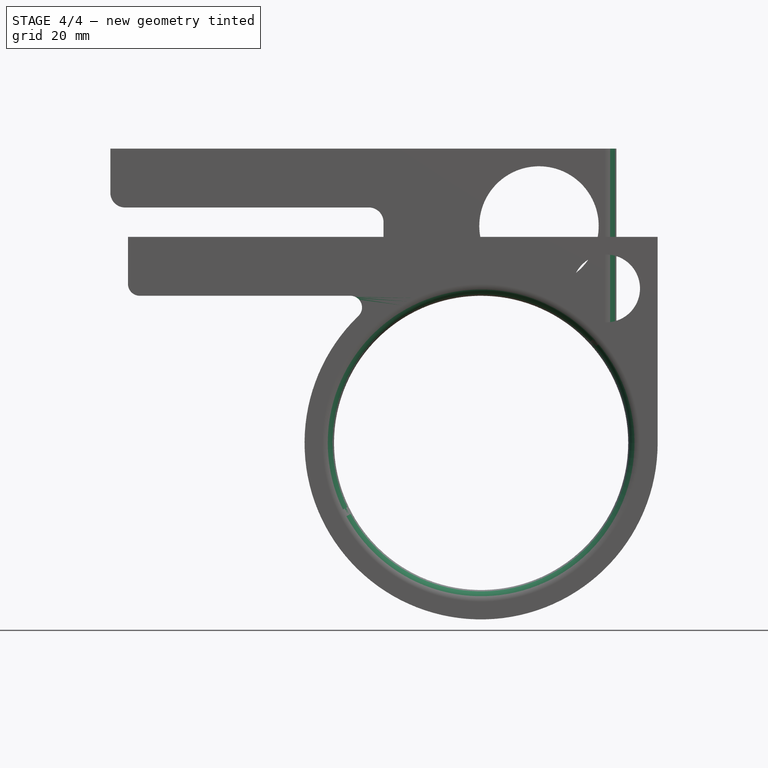
[diagram: stage 4 of 4 — front view after this stage's code; geometry added in this stage tinted green]
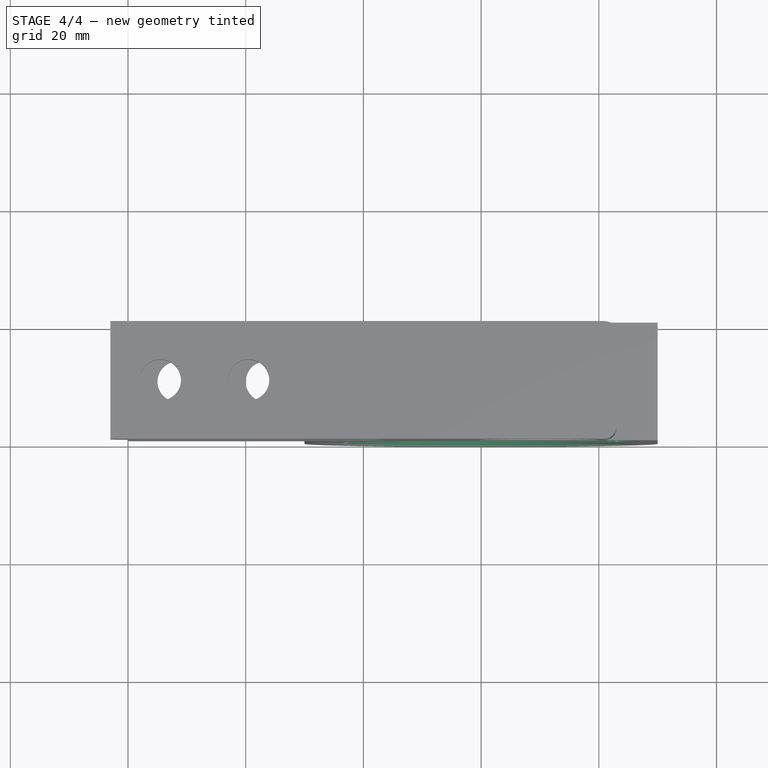
[diagram: stage 4 of 4 — top view after this stage's code; geometry added in this stage tinted green]
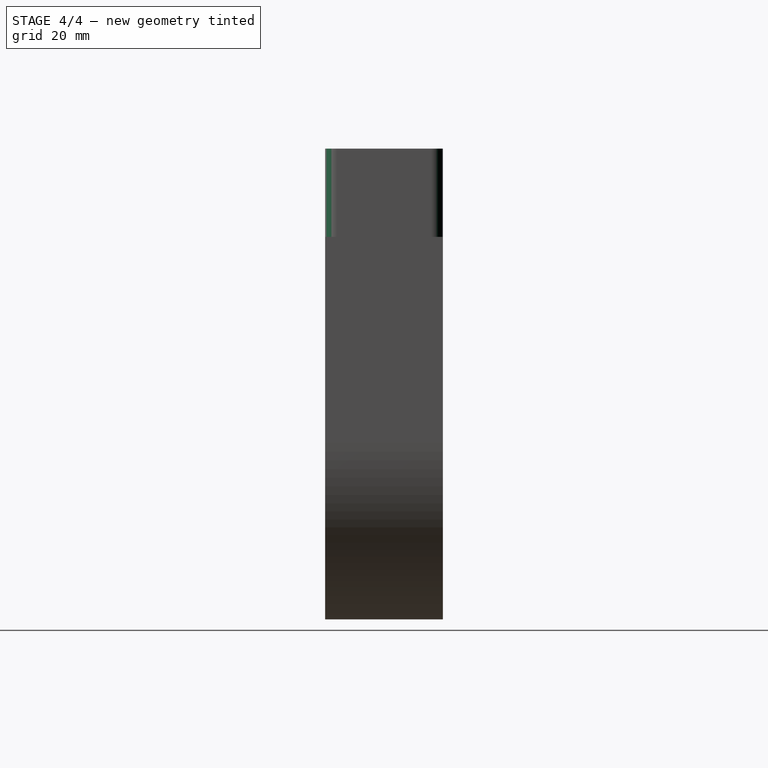
[diagram: stage 4 of 4 — right view after this stage's code; geometry added in this stage tinted green]
FEATURE [PartDesign::Fillet] Fillet005
  Base = -> Pocket007 [Edge13,Edge58]
  BaseFeature = -> Pocket007
  Placement = pos=(0,0,0) rot=(1,0,0;1.5708rad)
  Radius = 2
  SupportTransform = false
  UseAllEdges = false
FEATURE [PartDesign::Fillet] Fillet003
  Base = -> Pocket001 [Edge7,Edge1]
  BaseFeature = -> Pocket001
  Placement = pos=(0,0,0) rot=(1,0,0;1.5708rad)
  Radius = 1.99
  SupportTransform = false
  UseAllEdges = false
FEATURE [Sketcher::SketchObject] Sketch010
  ExternalGeometry = -> [Fillet003]
  FullyConstrained = true
  MapMode = 5
  Placement = pos=(0,-20,-4.4e-15) rot=(1,0,0;1.5708rad)
  Support = -> [Fillet003]
  sketch-geometry (5):
    g0: Circle CenterX=21.2404 CenterY=26.2404 CenterZ=0 NormalX=0 NormalY=0 NormalZ=1 AngleXU=0 Radius=5.75962
    g1: LineSegment StartX=21.2404 StartY=26.2404 StartZ=0 EndX=15.7291 EndY=19.4318 EndZ=0
    g2: LineSegment StartX=21.2404 StartY=26.2404 StartZ=0 EndX=21.2404 EndY=35 EndZ=0
    g3: LineSegment StartX=21.2404 StartY=26.2404 StartZ=0 EndX=30 EndY=26.2404 EndZ=0
    g4: GeomPoint X=27 Y=26.2404 Z=0
  constraints (13):
    c: Coincident(g1,g0)
    c: Coincident(g2,g0)
    c: PointOnObject(g2,g-3)
    c: Vertical(g2)
    c: Coincident(g3,g0)
    c: Horizontal(g3)
    c: Equal(g3,g2)
    c: Equal(g2,g1)
    c: PointOnObject(g4,g0)
    c: PointOnObject(g4,g3)
    c: DistanceX(g4,g3) = 3
    c: PointOnObject(g3,g-5)
    c: Perpendicular(g1,g-4) = 4.71239
FEATURE [PartDesign::Pocket] Pocket008
  BaseFeature = -> Fillet003
  Direction = (0,1,2e-16)
  Length = 5
  Length2 = 5
  Placement = pos=(0,0,0) rot=(1,0,0;1.5708rad)
  Profile = -> Sketch010
  ReferenceAxis = -> Sketch010 [N_Axis]
  Type = 2
FEATURE [PartDesign::Fillet] Fillet004
  Base = -> Pocket008 [Edge25,Edge12]
  BaseFeature = -> Pocket008
  Placement = pos=(0,0,0) rot=(1,0,0;1.5708rad)
  Radius = 2
  SupportTransform = false
  UseAllEdges = false
FEATURE [PartDesign::Body] Body
  Group = -> [Sketch,Pad,Sketch001,Sketch002,Pocket,Pocket001,Fillet003,Sketch010,Pocket008,Fillet004]
  Origin = -> Origin
  Tip = -> Fillet004
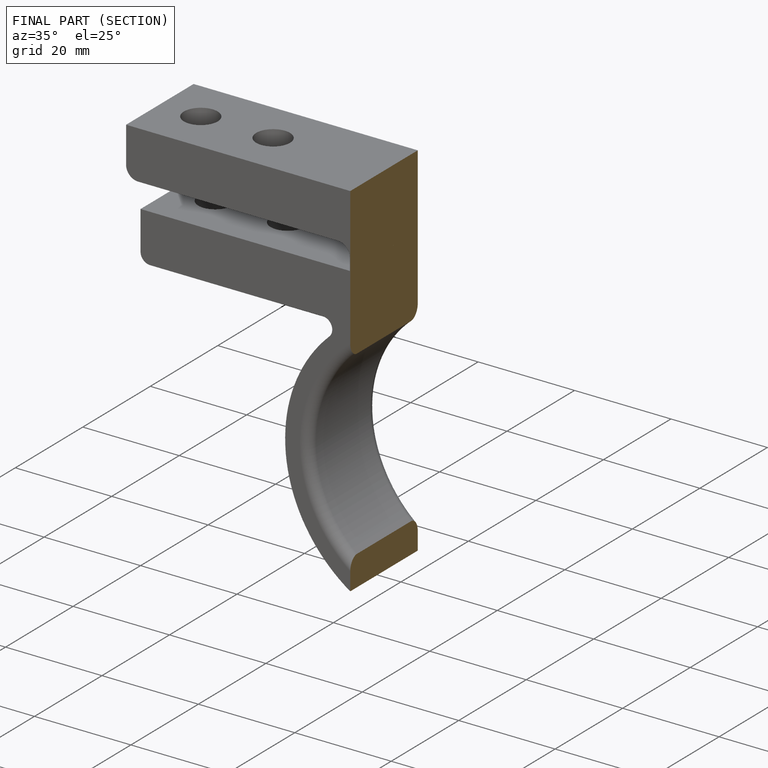
[diagram: finished part — half-section view (interior)]
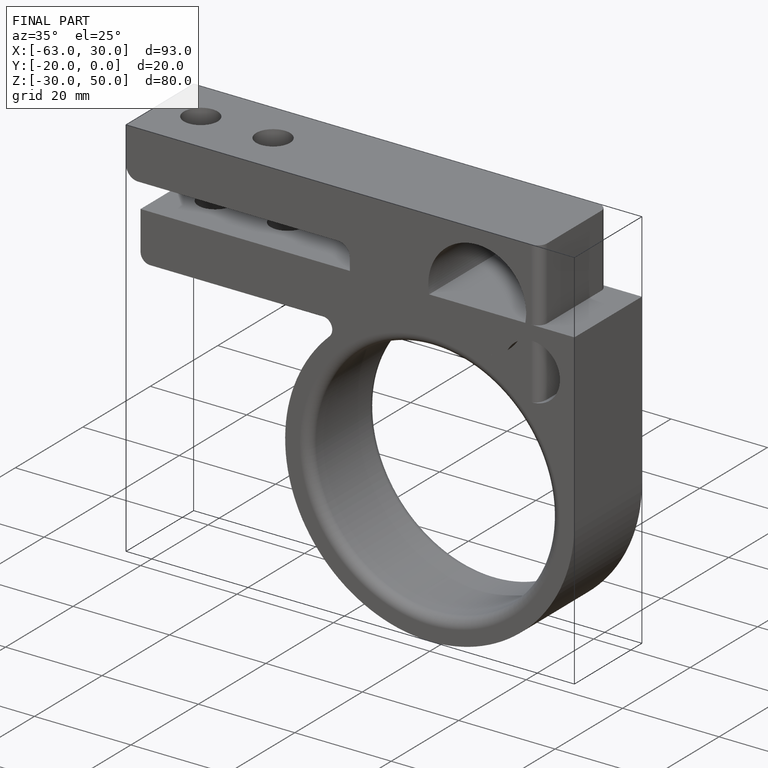
[diagram: finished part — iso view with bounding-box wireframe]
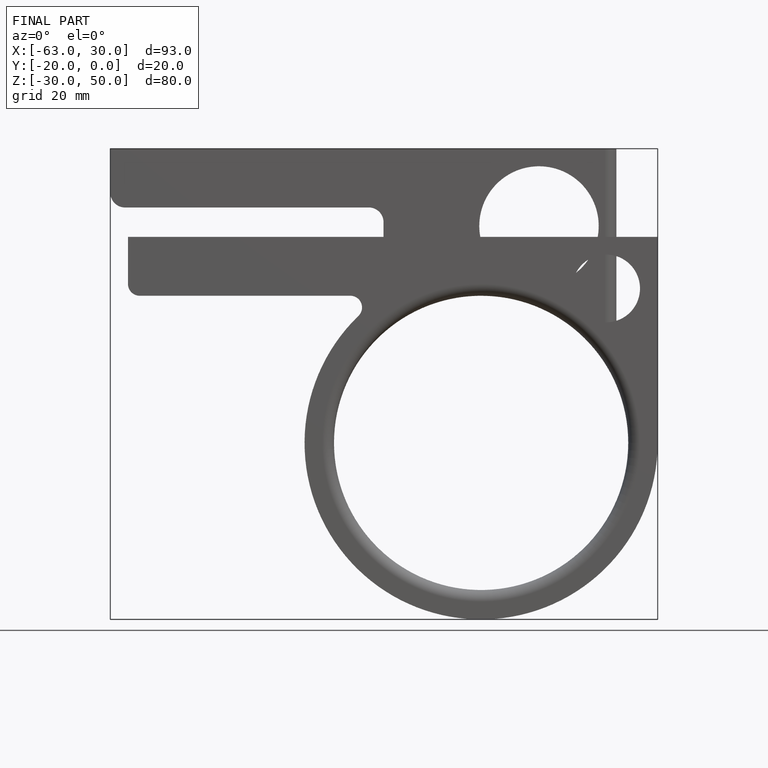
[diagram: finished part — front view with bounding-box wireframe]
